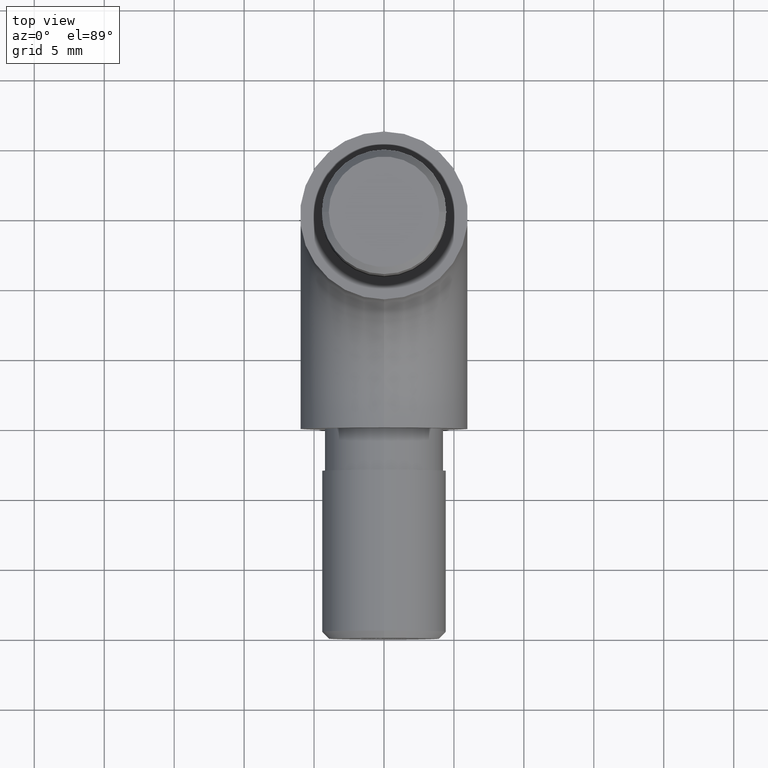
[diagram: clean part render]
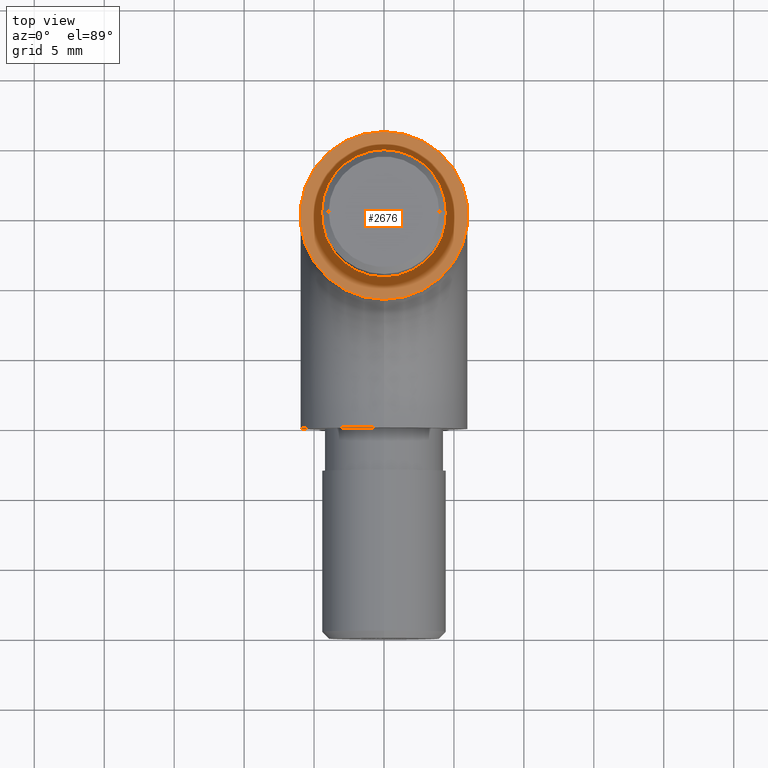
[diagram: same view with one face highlighted and labeled with its STEP entity id]
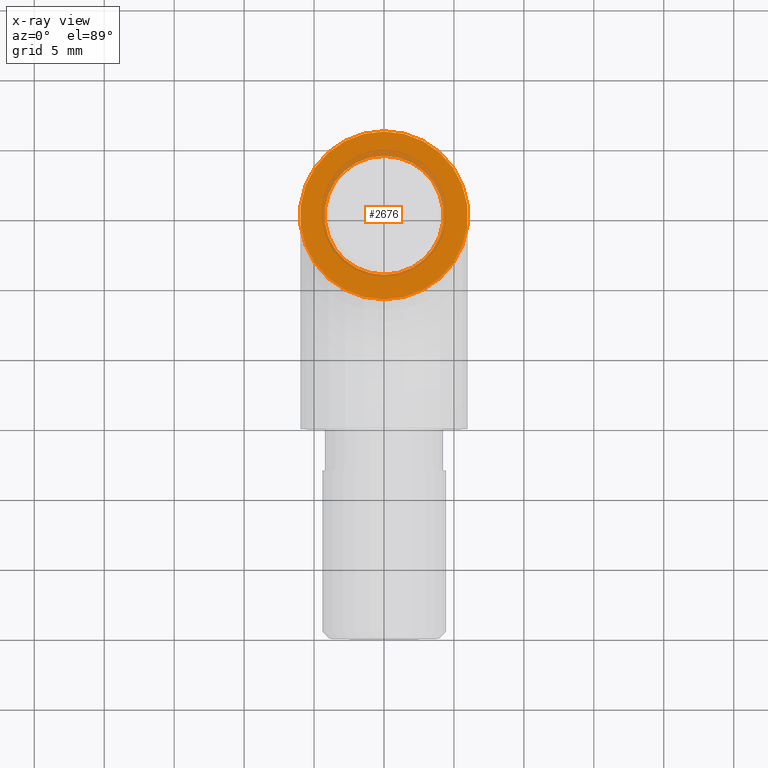
[diagram: x-ray of the same camera — body ghosted, the highlighted face saturated]
A machine part, top view. The second image highlights one B-rep face of the part: STEP entity #2676.
The next image is the same camera in x-ray: the body ghosted, the highlighted face saturated — about 12% of this face is hidden behind the body in this view.
In plain terms, the highlighted planar face has unit normal (0, -0, 1).
Its self-contained STEP definition (entity closure, byte-faithful):
#213 = CARTESIAN_POINT ( 'NONE',  ( 0.000000000000000000, 10.74999999999999822, 15.00000000000000178 ) ) ;
#1231 = CARTESIAN_POINT ( 'NONE',  ( 0.000000000000000000, 15.00000000000000000, 15.00000000000000178 ) ) ;
#1353 = FACE_BOUND ( 'NONE', #6702, .T. ) ;
#1404 = DIRECTION ( 'NONE',  ( 0.000000000000000000, -1.000000000000000000, -1.156482317317871725E-16 ) ) ;
#1819 = ORIENTED_EDGE ( 'NONE', *, *, #12236, .F. ) ;
#2554 = ORIENTED_EDGE ( 'NONE', *, *, #4670, .F. ) ;
#2588 = DIRECTION ( 'NONE',  ( 0.000000000000000000, -1.000000000000000000, 0.000000000000000000 ) ) ;
#2612 = PLANE ( 'NONE',  #9163 ) ;
#2666 = CARTESIAN_POINT ( 'NONE',  ( 0.000000000000000000, 15.00000000000000000, 15.00000000000000178 ) ) ;
#2676 = ADVANCED_FACE ( 'NONE', ( #1353, #11785 ), #2612, .T. ) ;
#3159 = CIRCLE ( 'NONE', #6872, 4.250000000000001776 ) ;
#3206 = AXIS2_PLACEMENT_3D ( 'NONE', #7403, #8603, #2588 ) ;
#3729 = CARTESIAN_POINT ( 'NONE',  ( 0.000000000000000000, 20.99999999999999645, 15.00000000000000178 ) ) ;
#4038 = DIRECTION ( 'NONE',  ( 0.000000000000000000, -1.000000000000000000, 0.000000000000000000 ) ) ;
#4670 = EDGE_CURVE ( 'NONE', #5614, #15030, #9568, .T. ) ;
#4807 = ORIENTED_EDGE ( 'NONE', *, *, #9868, .T. ) ;
#5614 = VERTEX_POINT ( 'NONE', #6497 ) ;
#5617 = DIRECTION ( 'NONE',  ( 0.000000000000000000, -1.000000000000000000, 0.000000000000000000 ) ) ;
#5962 = DIRECTION ( 'NONE',  ( 0.000000000000000000, -1.156482317317871725E-16, 1.000000000000000000 ) ) ;
#6085 = VERTEX_POINT ( 'NONE', #3729 ) ;
#6088 = AXIS2_PLACEMENT_3D ( 'NONE', #1231, #5962, #14251 ) ;
#6497 = CARTESIAN_POINT ( 'NONE',  ( -5.204748896376251685E-16, 19.25000000000000355, 15.00000000000000178 ) ) ;
#6702 = EDGE_LOOP ( 'NONE', ( #1819, #2554 ) ) ;
#6783 = CIRCLE ( 'NONE', #7838, 5.999999999999998224 ) ;
#6872 = AXIS2_PLACEMENT_3D ( 'NONE', #9901, #13446, #4038 ) ;
#7403 = CARTESIAN_POINT ( 'NONE',  ( 0.000000000000000000, 15.00000000000000000, 15.00000000000000178 ) ) ;
#7838 = AXIS2_PLACEMENT_3D ( 'NONE', #13865, #10352, #5617 ) ;
#8591 = VERTEX_POINT ( 'NONE', #15004 ) ;
#8603 = DIRECTION ( 'NONE',  ( -0.000000000000000000, -9.957992501029596272E-17, 1.000000000000000000 ) ) ;
#8621 = DIRECTION ( 'NONE',  ( 0.000000000000000000, -1.156482317317871725E-16, 1.000000000000000000 ) ) ;
#9163 = AXIS2_PLACEMENT_3D ( 'NONE', #2666, #8621, #1404 ) ;
#9568 = CIRCLE ( 'NONE', #3206, 4.250000000000001776 ) ;
#9582 = ORIENTED_EDGE ( 'NONE', *, *, #15164, .T. ) ;
#9868 = EDGE_CURVE ( 'NONE', #6085, #8591, #6783, .T. ) ;
#9901 = CARTESIAN_POINT ( 'NONE',  ( 0.000000000000000000, 15.00000000000000000, 15.00000000000000178 ) ) ;
#10352 = DIRECTION ( 'NONE',  ( 0.000000000000000000, -1.156482317317871725E-16, 1.000000000000000000 ) ) ;
#11785 = FACE_OUTER_BOUND ( 'NONE', #14393, .T. ) ;
#12236 = EDGE_CURVE ( 'NONE', #15030, #5614, #3159, .T. ) ;
#13044 = CIRCLE ( 'NONE', #6088, 5.999999999999998224 ) ;
#13446 = DIRECTION ( 'NONE',  ( -0.000000000000000000, -9.957992501029596272E-17, 1.000000000000000000 ) ) ;
#13865 = CARTESIAN_POINT ( 'NONE',  ( 0.000000000000000000, 15.00000000000000000, 15.00000000000000178 ) ) ;
#14251 = DIRECTION ( 'NONE',  ( 0.000000000000000000, -1.000000000000000000, 0.000000000000000000 ) ) ;
#14393 = EDGE_LOOP ( 'NONE', ( #9582, #4807 ) ) ;
#15004 = CARTESIAN_POINT ( 'NONE',  ( 0.000000000000000000, 9.000000000000001776, 15.00000000000000178 ) ) ;
#15030 = VERTEX_POINT ( 'NONE', #213 ) ;
#15164 = EDGE_CURVE ( 'NONE', #8591, #6085, #13044, .T. ) ;